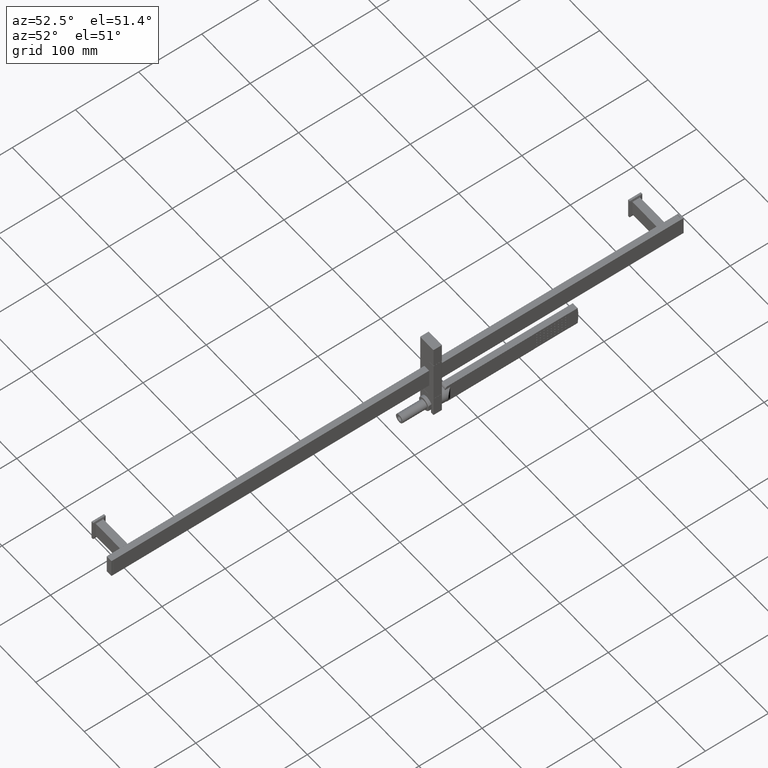
[diagram: clean part render]
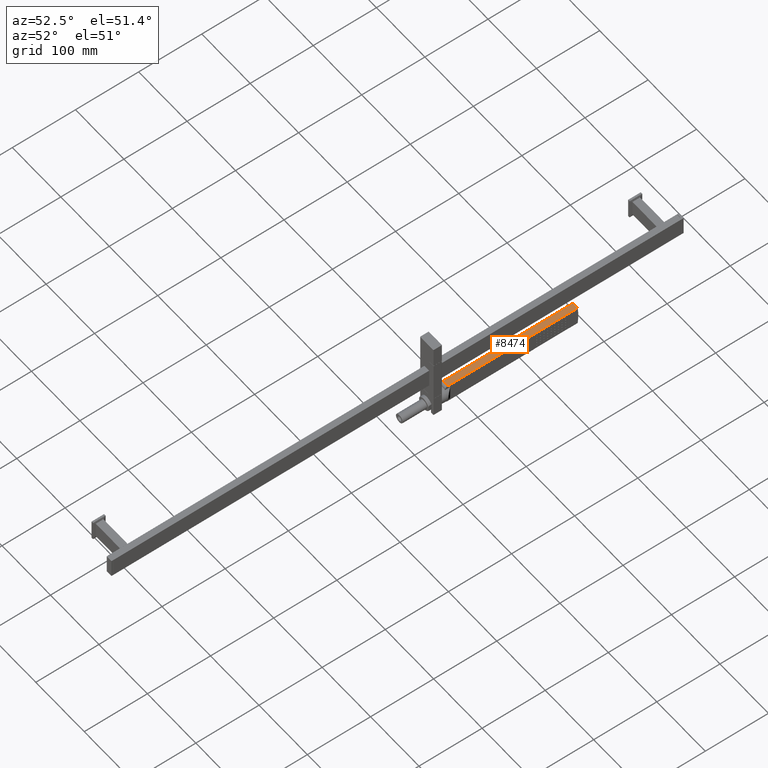
[diagram: same view with one face highlighted and labeled with its STEP entity id]
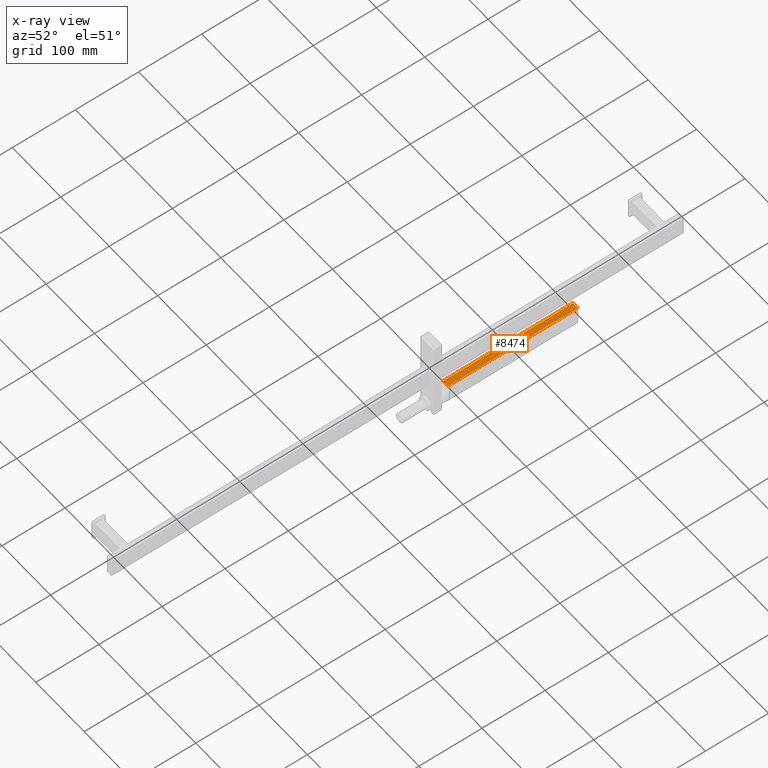
[diagram: x-ray of the same camera — body ghosted, the highlighted face saturated]
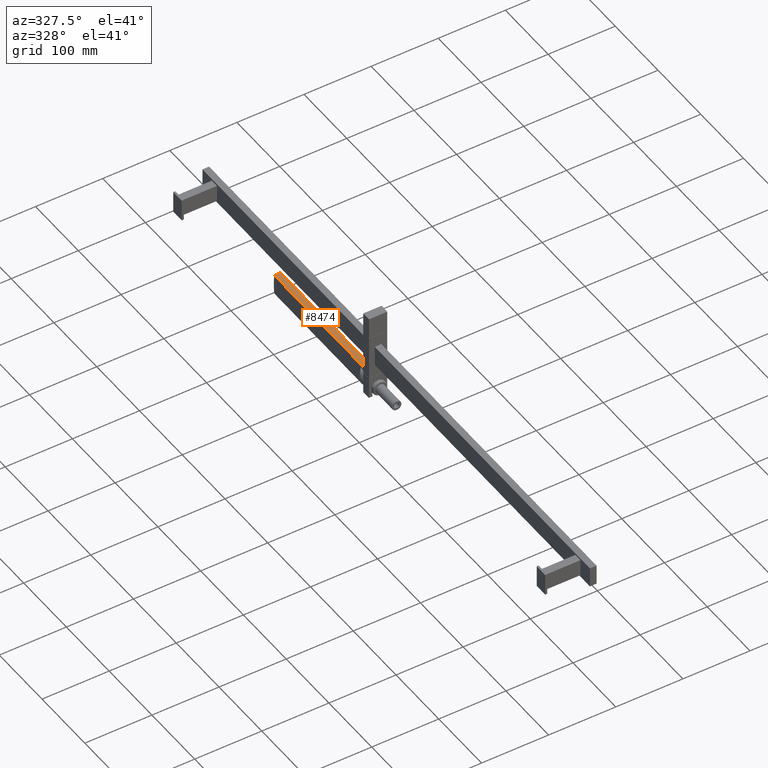
[diagram: same view with one face highlighted and labeled with its STEP entity id]
A machine part, auxiliary view. The second image highlights one B-rep face of the part: STEP entity #8474.
The next image is the same camera in x-ray: the body ghosted, the highlighted face saturated — about 0% of this face is hidden behind the body in this view.
A second angle (auxiliary view) of the same face is appended — the face is thin or edge-on in the first view.
In plain terms, the highlighted planar face has unit normal (0, 0, 1).
Its self-contained STEP definition (entity closure, byte-faithful):
#898=DIRECTION('',(0.E0,1.E0,-8.773250746154E-13));
#899=VECTOR('',#898,1.365E2);
#900=CARTESIAN_POINT('',(6.5E1,7.92E1,-3.839999999988E1));
#901=LINE('',#900,#899);
#930=DIRECTION('',(0.E0,-1.E0,5.739529671383E-13));
#931=VECTOR('',#930,2.06E2);
#932=CARTESIAN_POINT('',(5.5E1,2.852E2,-3.84E1));
#933=LINE('',#932,#931);
#957=DIRECTION('',(-1.E0,3.979039320257E-14,-1.563194018672E-14));
#958=VECTOR('',#957,1.E1);
#959=CARTESIAN_POINT('',(6.5E1,7.92E1,-3.839999999988E1));
#960=LINE('',#959,#958);
#961=DIRECTION('',(0.E0,-1.E0,0.E0));
#962=VECTOR('',#961,5.55E1);
#963=CARTESIAN_POINT('',(6.48E1,2.712E2,-3.84E1));
#964=LINE('',#963,#962);
#965=DIRECTION('',(1.E0,2.842170943041E-13,7.460698725481E-13));
#966=VECTOR('',#965,2.E-1);
#967=CARTESIAN_POINT('',(6.48E1,2.157E2,-3.84E1));
#968=LINE('',#967,#966);
#969=DIRECTION('',(-1.E0,0.E0,-5.456968210638E-13));
#970=VECTOR('',#969,1.E1);
#971=CARTESIAN_POINT('',(6.5E1,2.852E2,-3.839999999999E1));
#972=LINE('',#971,#970);
#977=DIRECTION('',(0.E0,1.E0,4.872293045212E-13));
#978=VECTOR('',#977,1.4E1);
#979=CARTESIAN_POINT('',(6.5E1,2.712E2,-3.84E1));
#980=LINE('',#979,#978);
#986=DIRECTION('',(1.E0,-8.526512829122E-13,7.460698725481E-13));
#987=VECTOR('',#986,2.E-1);
#988=CARTESIAN_POINT('',(6.48E1,2.712E2,-3.84E1));
#989=LINE('',#988,#987);
#5697=CARTESIAN_POINT('',(6.5E1,2.852E2,-3.839999999999E1));
#5698=CARTESIAN_POINT('',(5.5E1,2.852E2,-3.84E1));
#5699=VERTEX_POINT('',#5697);
#5700=VERTEX_POINT('',#5698);
#5709=CARTESIAN_POINT('',(6.5E1,7.92E1,-3.839999999988E1));
#5710=CARTESIAN_POINT('',(5.5E1,7.92E1,-3.839999999988E1));
#5711=VERTEX_POINT('',#5709);
#5712=VERTEX_POINT('',#5710);
#6678=CARTESIAN_POINT('',(6.5E1,2.157E2,-3.84E1));
#6680=VERTEX_POINT('',#6678);
#6683=CARTESIAN_POINT('',(6.5E1,2.712E2,-3.84E1));
#6685=VERTEX_POINT('',#6683);
#6711=CARTESIAN_POINT('',(6.48E1,2.157E2,-3.84E1));
#6713=VERTEX_POINT('',#6711);
#6715=CARTESIAN_POINT('',(6.48E1,2.712E2,-3.84E1));
#6717=VERTEX_POINT('',#6715);
#8454=CARTESIAN_POINT('',(6.E1,2.842E2,-3.84E1));
#8455=DIRECTION('',(0.E0,0.E0,1.E0));
#8456=DIRECTION('',(1.E0,0.E0,0.E0));
#8457=AXIS2_PLACEMENT_3D('',#8454,#8455,#8456);
#8458=PLANE('',#8457);
#8459=ORIENTED_EDGE('',*,*,#8379,.F.);
#8460=ORIENTED_EDGE('',*,*,#8349,.T.);
#8461=ORIENTED_EDGE('',*,*,#8428,.F.);
#8463=ORIENTED_EDGE('',*,*,#8462,.F.);
#8465=ORIENTED_EDGE('',*,*,#8464,.F.);
#8467=ORIENTED_EDGE('',*,*,#8466,.F.);
#8469=ORIENTED_EDGE('',*,*,#8468,.T.);
#8471=ORIENTED_EDGE('',*,*,#8470,.T.);
#8472=EDGE_LOOP('',(#8459,#8460,#8461,#8463,#8465,#8467,#8469,#8471));
#8473=FACE_OUTER_BOUND('',#8472,.F.);
#8474=ADVANCED_FACE('',(#8473),#8458,.T.);
#8349=EDGE_CURVE('',#5711,#5712,#960,.T.);
#8379=EDGE_CURVE('',#5711,#6680,#901,.T.);
#8428=EDGE_CURVE('',#5700,#5712,#933,.T.);
#8462=EDGE_CURVE('',#5699,#5700,#972,.T.);
#8464=EDGE_CURVE('',#6685,#5699,#980,.T.);
#8466=EDGE_CURVE('',#6717,#6685,#989,.T.);
#8468=EDGE_CURVE('',#6717,#6713,#964,.T.);
#8470=EDGE_CURVE('',#6713,#6680,#968,.T.);